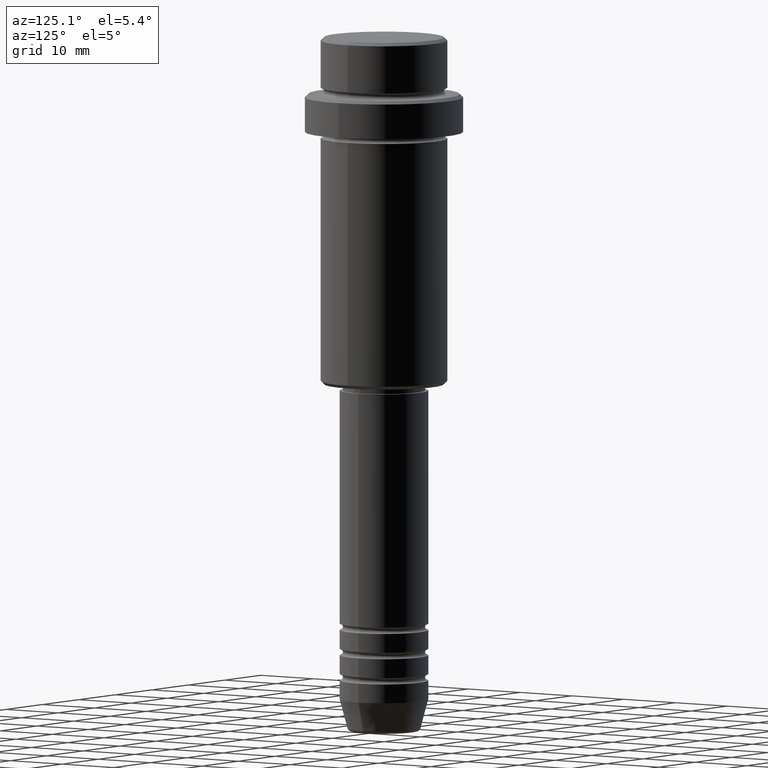
[diagram: clean part render]
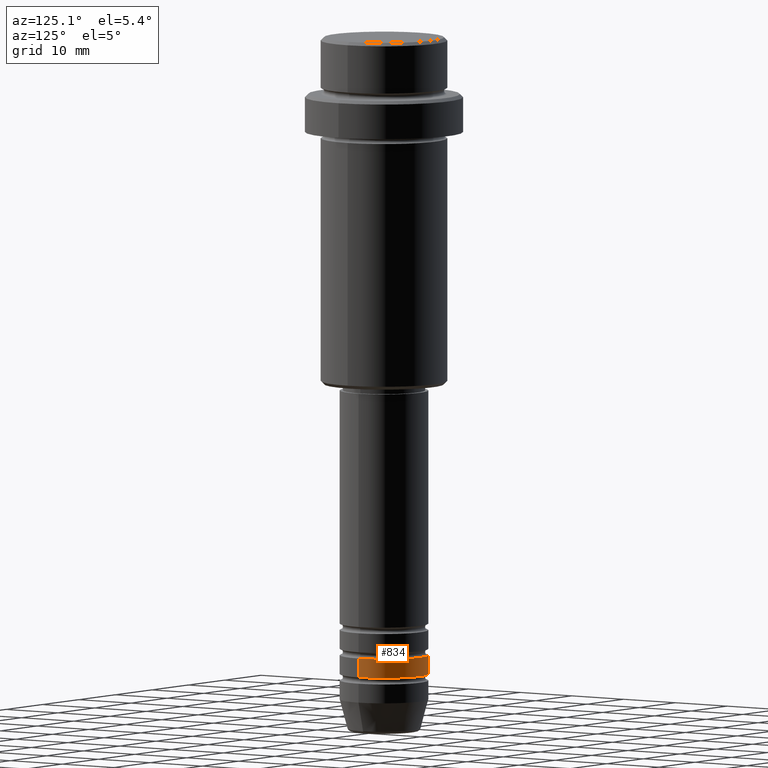
[diagram: same view with one face highlighted and labeled with its STEP entity id]
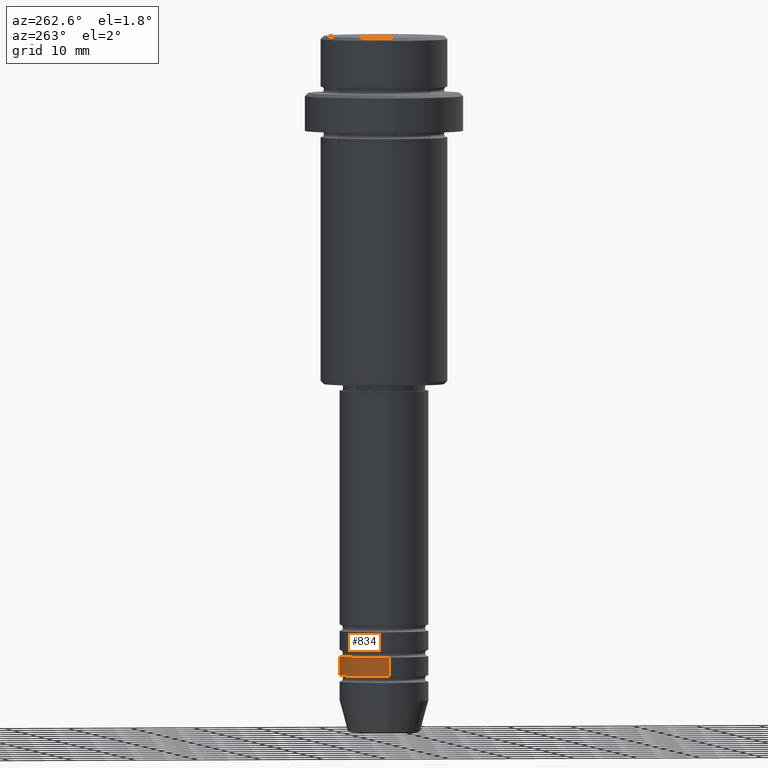
[diagram: same view with one face highlighted and labeled with its STEP entity id]
A machine part, auxiliary view. The second image highlights one B-rep face of the part: STEP entity #834.
A second angle (auxiliary view) of the same face is appended — the face is thin or edge-on in the first view.
In plain terms, the highlighted cylindrical surface (partial cylindrical patch) has radius 7 mm, axis along (-0, -0, 1).
Its self-contained STEP definition (entity closure, byte-faithful):
#5 = CARTESIAN_POINT ( 'NONE',  ( -7.000000000000000000, 8.572527594031473190E-16, -100.9999999999998863 ) ) ;
#53 = LINE ( 'NONE', #674, #672 ) ;
#61 = DIRECTION ( 'NONE',  ( -0.000000000000000000, -0.000000000000000000, 1.000000000000000000 ) ) ;
#101 = ORIENTED_EDGE ( 'NONE', *, *, #371, .F. ) ;
#123 = CARTESIAN_POINT ( 'NONE',  ( 0.000000000000000000, 0.000000000000000000, 0.000000000000000000 ) ) ;
#155 = AXIS2_PLACEMENT_3D ( 'NONE', #123, #220, #654 ) ;
#199 = CARTESIAN_POINT ( 'NONE',  ( 0.000000000000000000, 0.000000000000000000, -100.9999999999998863 ) ) ;
#220 = DIRECTION ( 'NONE',  ( -0.000000000000000000, -0.000000000000000000, 1.000000000000000000 ) ) ;
#322 = CYLINDRICAL_SURFACE ( 'NONE', #155, 7.000000000000000000 ) ;
#371 = EDGE_CURVE ( 'NONE', #1256, #612, #382, .T. ) ;
#382 = CIRCLE ( 'NONE', #1159, 7.000000000000000000 ) ;
#399 = CARTESIAN_POINT ( 'NONE',  ( -7.000000000000000000, 8.572527594031473190E-16, 0.000000000000000000 ) ) ;
#403 = AXIS2_PLACEMENT_3D ( 'NONE', #199, #1173, #825 ) ;
#477 = CARTESIAN_POINT ( 'NONE',  ( -7.000000000000000000, 8.572527594031473190E-16, -97.99999999999988631 ) ) ;
#515 = EDGE_LOOP ( 'NONE', ( #875, #1299, #101, #1126 ) ) ;
#533 = CARTESIAN_POINT ( 'NONE',  ( 7.000000000000000000, 0.000000000000000000, -100.9999999999998863 ) ) ;
#546 = DIRECTION ( 'NONE',  ( -0.000000000000000000, -0.000000000000000000, 1.000000000000000000 ) ) ;
#612 = VERTEX_POINT ( 'NONE', #477 ) ;
#647 = CIRCLE ( 'NONE', #403, 7.000000000000000000 ) ;
#654 = DIRECTION ( 'NONE',  ( 1.000000000000000000, 0.000000000000000000, 0.000000000000000000 ) ) ;
#672 = VECTOR ( 'NONE', #1031, 1000.000000000000000 ) ;
#674 = CARTESIAN_POINT ( 'NONE',  ( 7.000000000000000000, 0.000000000000000000, 0.000000000000000000 ) ) ;
#825 = DIRECTION ( 'NONE',  ( 1.000000000000000000, 0.000000000000000000, 0.000000000000000000 ) ) ;
#834 = ADVANCED_FACE ( 'NONE', ( #1302 ), #322, .T. ) ;
#875 = ORIENTED_EDGE ( 'NONE', *, *, #1075, .T. ) ;
#902 = DIRECTION ( 'NONE',  ( 1.000000000000000000, 0.000000000000000000, 0.000000000000000000 ) ) ;
#1001 = CARTESIAN_POINT ( 'NONE',  ( 7.000000000000000000, 0.000000000000000000, -97.99999999999988631 ) ) ;
#1031 = DIRECTION ( 'NONE',  ( -0.000000000000000000, -0.000000000000000000, 1.000000000000000000 ) ) ;
#1055 = EDGE_CURVE ( 'NONE', #1167, #612, #1396, .T. ) ;
#1075 = EDGE_CURVE ( 'NONE', #1265, #1167, #647, .T. ) ;
#1126 = ORIENTED_EDGE ( 'NONE', *, *, #1341, .F. ) ;
#1159 = AXIS2_PLACEMENT_3D ( 'NONE', #1190, #546, #902 ) ;
#1167 = VERTEX_POINT ( 'NONE', #5 ) ;
#1173 = DIRECTION ( 'NONE',  ( -0.000000000000000000, -0.000000000000000000, 1.000000000000000000 ) ) ;
#1190 = CARTESIAN_POINT ( 'NONE',  ( 0.000000000000000000, 0.000000000000000000, -97.99999999999988631 ) ) ;
#1256 = VERTEX_POINT ( 'NONE', #1001 ) ;
#1265 = VERTEX_POINT ( 'NONE', #533 ) ;
#1275 = VECTOR ( 'NONE', #61, 1000.000000000000000 ) ;
#1299 = ORIENTED_EDGE ( 'NONE', *, *, #1055, .T. ) ;
#1302 = FACE_OUTER_BOUND ( 'NONE', #515, .T. ) ;
#1341 = EDGE_CURVE ( 'NONE', #1265, #1256, #53, .T. ) ;
#1396 = LINE ( 'NONE', #399, #1275 ) ;